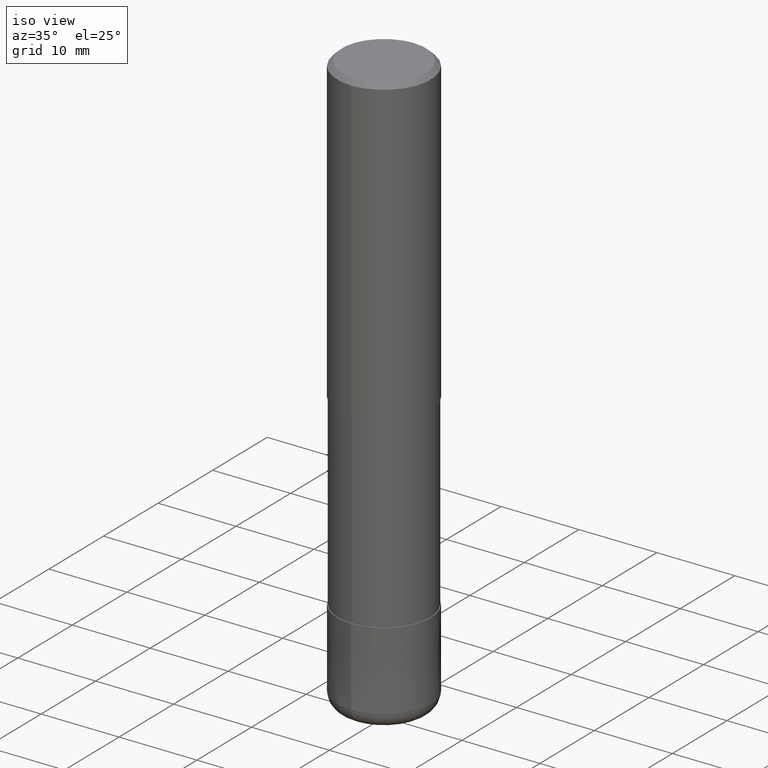
[diagram: clean part render]
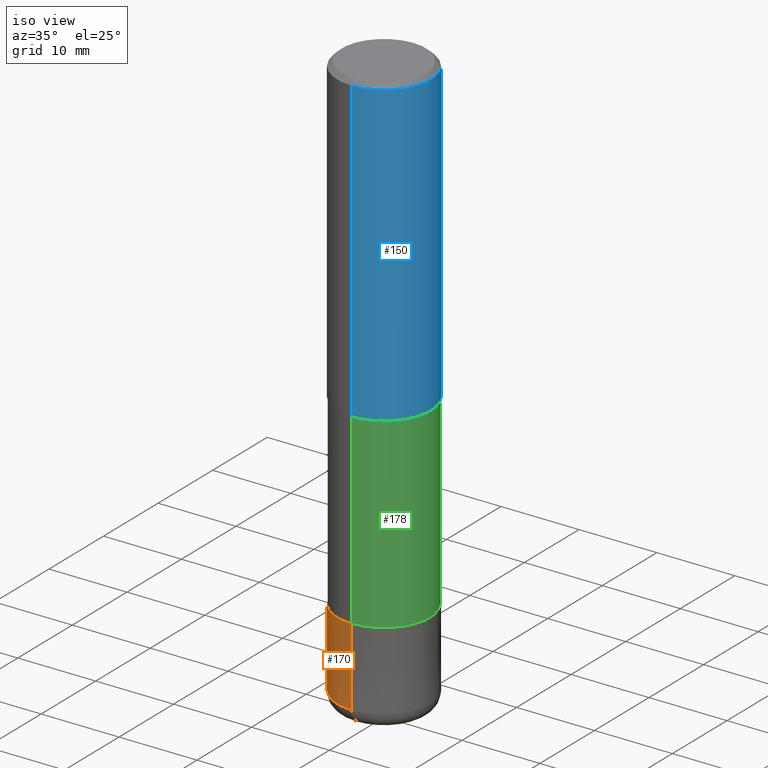
[diagram: same view with three faces highlighted in distinct colors, each labeled with its STEP entity id]
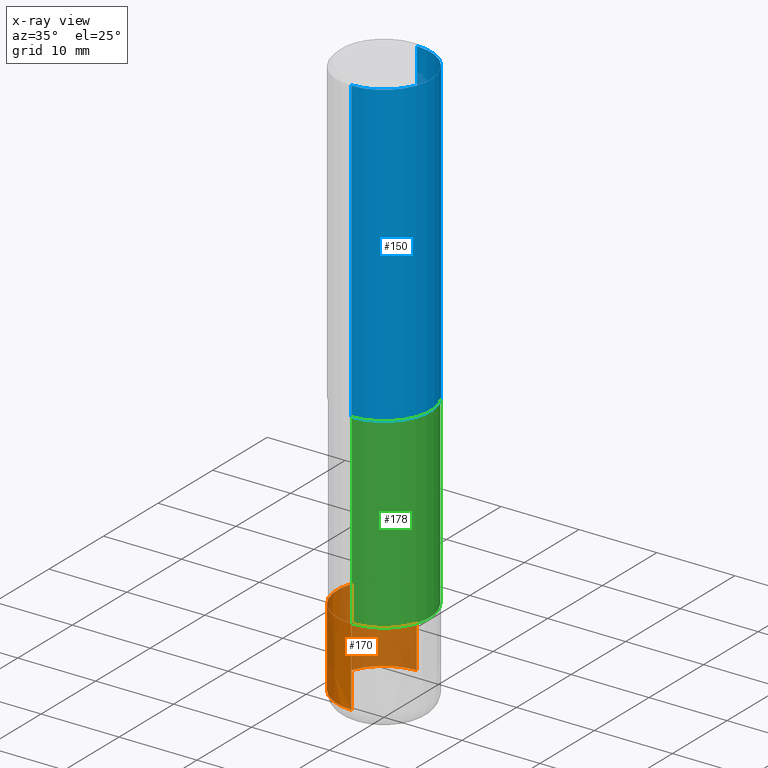
[diagram: x-ray of the same camera — body ghosted, the three highlighted faces saturated]
A machine part, iso view with three faces highlighted in distinct colors.
The next image is the same camera in x-ray (body ghosted, the three faces saturated) — at least one of them is partly hidden behind the body in this view.
Their STEP definitions:

[orange] entity #170 — the highlighted conical surface has half-angle 0.001 deg.
#110=EDGE_CURVE('',#142,#120,#250,.T.);
#112=EDGE_CURVE('',#120,#182,#252,.T.);
#120=VERTEX_POINT('',#261);
#142=VERTEX_POINT('',#287);
#152=EDGE_CURVE('',#202,#142,#299,.T.);
#170=ADVANCED_FACE('',(#318),#319,.T.);
#182=VERTEX_POINT('',#334);
#184=EDGE_CURVE('',#202,#182,#336,.T.);
#202=VERTEX_POINT('',#355);
#250=CIRCLE('',#400,5.9999);
#252=LINE('',#403,#404);
#261=CARTESIAN_POINT('',(0.0,5.9999,-63.0));
#287=CARTESIAN_POINT('',(7.34751566229888E-016,-5.9999,-63.0));
#299=LINE('',#459,#460);
#318=FACE_OUTER_BOUND('',#486,.T.);
#319=CONICAL_SURFACE('',#487,5.99995,9.99999999964336E-006);
#334=CARTESIAN_POINT('',(0.0,6.0,-73.0));
#336=CIRCLE('',#506,6.0);
#355=CARTESIAN_POINT('',(7.34763812293427E-016,-6.0,-73.0));
#400=AXIS2_PLACEMENT_3D('',#572,#573,#574);
#403=CARTESIAN_POINT('',(-7.34757689261657E-016,5.99995,-68.0));
#404=VECTOR('',#575,1.0);
#459=CARTESIAN_POINT('',(7.34757689261657E-016,-5.99995,-68.0));
#460=VECTOR('',#637,1.0);
#486=EDGE_LOOP('',(#658,#659,#660,#661));
#487=AXIS2_PLACEMENT_3D('',#662,#663,#664);
#506=AXIS2_PLACEMENT_3D('',#690,#691,#692);
#572=CARTESIAN_POINT('',(0.0,0.0,-63.0));
#573=DIRECTION('',(0.0,0.0,-1.0));
#574=DIRECTION('',(0.0,1.0,0.0));
#575=DIRECTION('',(-1.22460635375829E-021,9.99999999947669E-006,-0.99999999995));
#637=DIRECTION('',(-1.22460635375829E-021,9.99999999947669E-006,0.99999999995));
#658=ORIENTED_EDGE('',*,*,#112,.T.);
#659=ORIENTED_EDGE('',*,*,#184,.F.);
#660=ORIENTED_EDGE('',*,*,#152,.T.);
#661=ORIENTED_EDGE('',*,*,#110,.T.);
#662=CARTESIAN_POINT('',(0.0,0.0,-68.0));
#663=DIRECTION('',(0.0,-0.0,-1.0));
#664=DIRECTION('',(0.0,1.0,0.0));
#690=CARTESIAN_POINT('',(0.0,0.0,-73.0));
#691=DIRECTION('',(0.0,0.0,-1.0));
#692=DIRECTION('',(0.0,1.0,0.0));

[blue] entity #150 — the highlighted cylindrical surface (partial cylindrical patch) has radius 6 mm, axis along (-0, -0, 1).
#100=VERTEX_POINT('',#239);
#124=EDGE_CURVE('',#144,#200,#265,.T.);
#136=EDGE_CURVE('',#100,#166,#280,.T.);
#144=VERTEX_POINT('',#289);
#146=EDGE_CURVE('',#200,#100,#291,.T.);
#150=ADVANCED_FACE('',(#296),#297,.T.);
#158=EDGE_CURVE('',#144,#166,#306,.T.);
#166=VERTEX_POINT('',#314);
#200=VERTEX_POINT('',#353);
#239=CARTESIAN_POINT('',(7.34763812293426E-016,-6.0,-39.0));
#265=LINE('',#417,#418);
#280=LINE('',#436,#437);
#289=CARTESIAN_POINT('',(0.0,6.0,-0.600000000000001));
#291=CIRCLE('',#450,6.0);
#296=FACE_OUTER_BOUND('',#455,.T.);
#297=CYLINDRICAL_SURFACE('',#456,6.0);
#306=CIRCLE('',#468,6.0);
#314=CARTESIAN_POINT('',(7.34763812293426E-016,-6.0,-0.600000000000001));
#353=CARTESIAN_POINT('',(0.0,6.0,-39.0));
#417=CARTESIAN_POINT('',(-7.34763812293426E-016,6.0,-19.8));
#418=VECTOR('',#585,1.0);
#436=CARTESIAN_POINT('',(7.34763812293426E-016,-6.0,-19.8));
#437=VECTOR('',#608,1.0);
#450=AXIS2_PLACEMENT_3D('',#618,#619,#620);
#455=EDGE_LOOP('',(#630,#631,#632,#633));
#456=AXIS2_PLACEMENT_3D('',#634,#635,#636);
#468=AXIS2_PLACEMENT_3D('',#646,#647,#648);
#585=DIRECTION('',(0.0,0.0,-1.0));
#608=DIRECTION('',(-0.0,-0.0,1.0));
#618=CARTESIAN_POINT('',(0.0,0.0,-39.0));
#619=DIRECTION('',(0.0,0.0,-1.0));
#620=DIRECTION('',(0.0,1.0,0.0));
#630=ORIENTED_EDGE('',*,*,#124,.F.);
#631=ORIENTED_EDGE('',*,*,#158,.T.);
#632=ORIENTED_EDGE('',*,*,#136,.F.);
#633=ORIENTED_EDGE('',*,*,#146,.F.);
#634=CARTESIAN_POINT('',(0.0,0.0,-19.8));
#635=DIRECTION('',(-0.0,-0.0,1.0));
#636=DIRECTION('',(0.0,1.0,0.0));
#646=CARTESIAN_POINT('',(0.0,0.0,-0.600000000000001));
#647=DIRECTION('',(0.0,0.0,-1.0));
#648=DIRECTION('',(0.0,1.0,0.0));

[green] entity #178 — the highlighted cylindrical surface (partial cylindrical patch) has radius 5.91 mm, axis along (-0, -0, 1).
#102=VERTEX_POINT('',#241);
#132=VERTEX_POINT('',#275);
#156=VERTEX_POINT('',#304);
#160=EDGE_CURVE('',#156,#132,#308,.T.);
#176=EDGE_CURVE('',#102,#156,#326,.T.);
#178=ADVANCED_FACE('',(#328),#329,.T.);
#186=VERTEX_POINT('',#338);
#192=EDGE_CURVE('',#186,#132,#345,.T.);
#206=EDGE_CURVE('',#186,#102,#359,.T.);
#241=CARTESIAN_POINT('',(0.0,5.90995,-63.0));
#275=CARTESIAN_POINT('',(7.23736232077256E-016,-5.90995,-39.0));
#304=CARTESIAN_POINT('',(7.23736232077256E-016,-5.90995,-63.0));
#308=LINE('',#471,#472);
#326=CIRCLE('',#495,5.90995);
#328=FACE_OUTER_BOUND('',#497,.T.);
#329=CYLINDRICAL_SURFACE('',#498,5.90995);
#338=CARTESIAN_POINT('',(0.0,5.90995,-39.0));
#345=CIRCLE('',#517,5.90995);
#359=LINE('',#534,#535);
#471=CARTESIAN_POINT('',(7.23736232077256E-016,-5.90995,-51.0));
#472=VECTOR('',#649,1.0);
#495=AXIS2_PLACEMENT_3D('',#673,#674,#675);
#497=EDGE_LOOP('',(#677,#678,#679,#680));
#498=AXIS2_PLACEMENT_3D('',#681,#682,#683);
#517=AXIS2_PLACEMENT_3D('',#704,#705,#706);
#534=CARTESIAN_POINT('',(-7.23736232077256E-016,5.90995,-51.0));
#535=VECTOR('',#712,1.0);
#649=DIRECTION('',(-0.0,-0.0,1.0));
#673=CARTESIAN_POINT('',(0.0,0.0,-63.0));
#674=DIRECTION('',(0.0,0.0,-1.0));
#675=DIRECTION('',(0.0,1.0,0.0));
#677=ORIENTED_EDGE('',*,*,#206,.F.);
#678=ORIENTED_EDGE('',*,*,#192,.T.);
#679=ORIENTED_EDGE('',*,*,#160,.F.);
#680=ORIENTED_EDGE('',*,*,#176,.F.);
#681=CARTESIAN_POINT('',(0.0,0.0,-51.0));
#682=DIRECTION('',(-0.0,-0.0,1.0));
#683=DIRECTION('',(0.0,1.0,0.0));
#704=CARTESIAN_POINT('',(0.0,0.0,-39.0));
#705=DIRECTION('',(0.0,0.0,-1.0));
#706=DIRECTION('',(0.0,1.0,0.0));
#712=DIRECTION('',(0.0,0.0,-1.0));